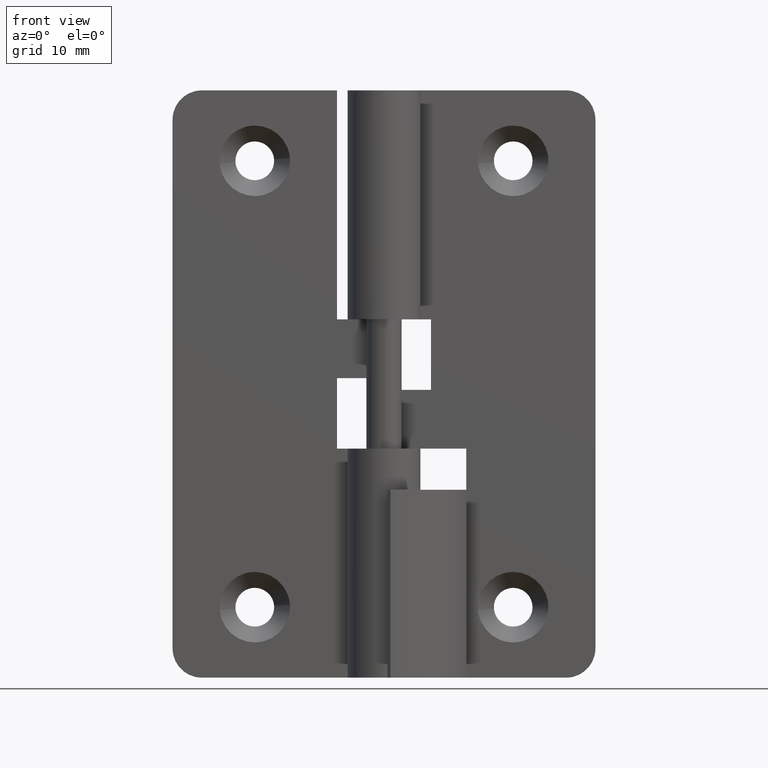
[diagram: clean part render]
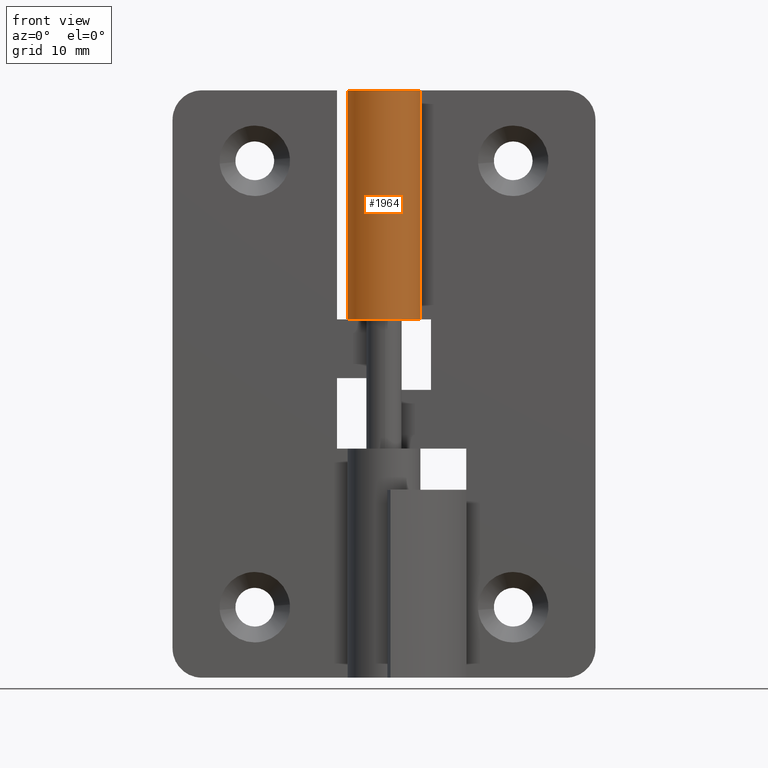
[diagram: same view with one face highlighted and labeled with its STEP entity id]
A machine part, front view. The second image highlights one B-rep face of the part: STEP entity #1964.
In plain terms, the highlighted face is a freeform B-spline surface patch.
Its self-contained STEP definition (entity closure, byte-faithful):
#1635=CARTESIAN_POINT('',(2.739982689720425,1.449984999999896,30.500000000000000));
#1636=VERTEX_POINT('',#1635);
#1642=CARTESIAN_POINT('',(0.007462934341625,3.099991000000000,30.500000000000000));
#1643=VERTEX_POINT('',#1642);
#1644=CARTESIAN_POINT('',(2.739982689720424,1.449984999999897,30.500000000000000));
#1645=CARTESIAN_POINT('',(3.842704569042448,-0.633792818371950,30.500000000000004));
#1646=CARTESIAN_POINT('',(2.129221735772297,-2.253083440700915,30.500000000000000));
#1647=CARTESIAN_POINT('',(0.415738902502146,-3.872374063029881,30.500000000000004));
#1648=CARTESIAN_POINT('',(-1.602431271681201,-2.653721246387343,30.500000000000000));
#1649=CARTESIAN_POINT('',(-3.620601445864549,-1.435068429744806,30.500000000000004));
#1650=CARTESIAN_POINT('',(-2.985349691904453,0.835301749006813,30.500000000000000));
#1651=CARTESIAN_POINT('',(-2.350097937944357,3.105671927758428,30.500000000000004));
#1652=CARTESIAN_POINT('',(0.007462934341621,3.099990999999988,30.500000000000000));
#1660=(BOUNDED_CURVE()B_SPLINE_CURVE(2,(#1644,#1645,#1646,#1647,#1648,#1649,#1650,#1651,#1652),.UNSPECIFIED.,.F.,.U.)B_SPLINE_CURVE_WITH_KNOTS((3,2,2,2,3),(0.0,0.250000000000000,0.500000000000000,0.750000000000000,1.0),.UNSPECIFIED.)CURVE()GEOMETRIC_REPRESENTATION_ITEM()RATIONAL_B_SPLINE_CURVE((1.0,0.795968235131037,1.0,0.795968235131037,1.0,0.795968235131037,1.0,0.795968235131037,1.0))REPRESENTATION_ITEM(''));
#1661=EDGE_CURVE('',#1636,#1643,#1660,.T.);
#1846=CARTESIAN_POINT('',(0.007462934341625,3.099991000000000,50.0));
#1847=VERTEX_POINT('',#1846);
#1853=CARTESIAN_POINT('',(2.739982689720425,1.449984999999896,50.0));
#1854=VERTEX_POINT('',#1853);
#1855=CARTESIAN_POINT('',(0.007462934341626,3.099990999999988,50.0));
#1856=CARTESIAN_POINT('',(-2.350097937944355,3.105671927758432,50.0));
#1857=CARTESIAN_POINT('',(-2.985349691904452,0.835301749006815,50.0));
#1858=CARTESIAN_POINT('',(-3.620601445864552,-1.435068429744805,50.0));
#1859=CARTESIAN_POINT('',(-1.602431271681203,-2.653721246387343,50.0));
#1860=CARTESIAN_POINT('',(0.415738902502145,-3.872374063029882,50.0));
#1861=CARTESIAN_POINT('',(2.129221735772298,-2.253083440700915,50.0));
#1862=CARTESIAN_POINT('',(3.842704569042446,-0.633792818371951,50.0));
#1863=CARTESIAN_POINT('',(2.739982689720425,1.449984999999896,50.0));
#1871=(BOUNDED_CURVE()B_SPLINE_CURVE(2,(#1855,#1856,#1857,#1858,#1859,#1860,#1861,#1862,#1863),.UNSPECIFIED.,.F.,.U.)B_SPLINE_CURVE_WITH_KNOTS((3,2,2,2,3),(0.0,0.250000000000000,0.500000000000000,0.750000000000000,1.0),.UNSPECIFIED.)CURVE()GEOMETRIC_REPRESENTATION_ITEM()RATIONAL_B_SPLINE_CURVE((1.0,0.795968235131037,1.0,0.795968235131037,1.0,0.795968235131037,1.0,0.795968235131037,1.0))REPRESENTATION_ITEM(''));
#1872=EDGE_CURVE('',#1847,#1854,#1871,.T.);
#1928=CARTESIAN_POINT('',(2.674826920953351,1.566928044077414,30.012499999999999));
#1929=CARTESIAN_POINT('',(2.674826920953351,1.566928044077414,50.499687500000007));
#1930=CARTESIAN_POINT('',(4.598354228310062,-1.716640789249289,30.012499999999989));
#1931=CARTESIAN_POINT('',(4.598354228310062,-1.716640789249289,50.499687500000014));
#1932=CARTESIAN_POINT('',(0.993650863061846,-2.936433900358557,30.012499999999999));
#1933=CARTESIAN_POINT('',(0.993650863061846,-2.936433900358557,50.499687500000007));
#1934=CARTESIAN_POINT('',(-2.611052502186369,-4.156227011467826,30.012499999999989));
#1935=CARTESIAN_POINT('',(-2.611052502186369,-4.156227011467826,50.499687500000014));
#1936=CARTESIAN_POINT('',(-3.076711082547834,-0.379330974789403,30.012499999999999));
#1937=CARTESIAN_POINT('',(-3.076711082547834,-0.379330974789403,50.499687500000007));
#1938=CARTESIAN_POINT('',(-3.542369662909301,3.397565061889019,30.012499999999989));
#1939=CARTESIAN_POINT('',(-3.542369662909301,3.397565061889019,50.499687500000014));
#1940=CARTESIAN_POINT('',(0.250662397651472,3.089848678023074,30.012499999999999));
#1941=CARTESIAN_POINT('',(0.250662397651472,3.089848678023074,50.499687500000007));
#1949=(BOUNDED_SURFACE()B_SPLINE_SURFACE(1,2,((#1928,#1930,#1932,#1934,#1936,#1938,#1940),(#1929,#1931,#1933,#1935,#1937,#1939,#1941)),.UNSPECIFIED.,.F.,.F.,.U.)B_SPLINE_SURFACE_WITH_KNOTS((2,2),(3,2,2,3),(0.0,20.487187500000012),(0.0,5.892373788004340,11.784747576008680,17.677121364013018),.UNSPECIFIED.)GEOMETRIC_REPRESENTATION_ITEM()RATIONAL_B_SPLINE_SURFACE(((1.0,0.631578351302498,1.0,0.631578351302498,1.0,0.631578351302498,1.0),(1.0,0.631578351302498,1.0,0.631578351302498,1.0,0.631578351302498,1.0)))REPRESENTATION_ITEM('')SURFACE());
#1950=ORIENTED_EDGE('',*,*,#1661,.F.);
#1951=CARTESIAN_POINT('',(2.739982689720425,1.449984999999896,30.500000000000000));
#1952=CARTESIAN_POINT('',(2.739982689720425,1.449984999999896,50.0));
#1953=QUASI_UNIFORM_CURVE('',1,(#1951,#1952),.UNSPECIFIED.,.F.,.U.);
#1954=EDGE_CURVE('',#1636,#1854,#1953,.T.);
#1955=ORIENTED_EDGE('',*,*,#1954,.T.);
#1956=ORIENTED_EDGE('',*,*,#1872,.F.);
#1957=CARTESIAN_POINT('',(0.007462934341625,3.099991000000000,30.500000000000000));
#1958=CARTESIAN_POINT('',(0.007462934341625,3.099991000000000,50.0));
#1959=QUASI_UNIFORM_CURVE('',1,(#1957,#1958),.UNSPECIFIED.,.F.,.U.);
#1960=EDGE_CURVE('',#1643,#1847,#1959,.T.);
#1961=ORIENTED_EDGE('',*,*,#1960,.F.);
#1962=EDGE_LOOP('',(#1950,#1955,#1956,#1961));
#1963=FACE_OUTER_BOUND('',#1962,.T.);
#1964=ADVANCED_FACE('',(#1963),#1949,.T.);